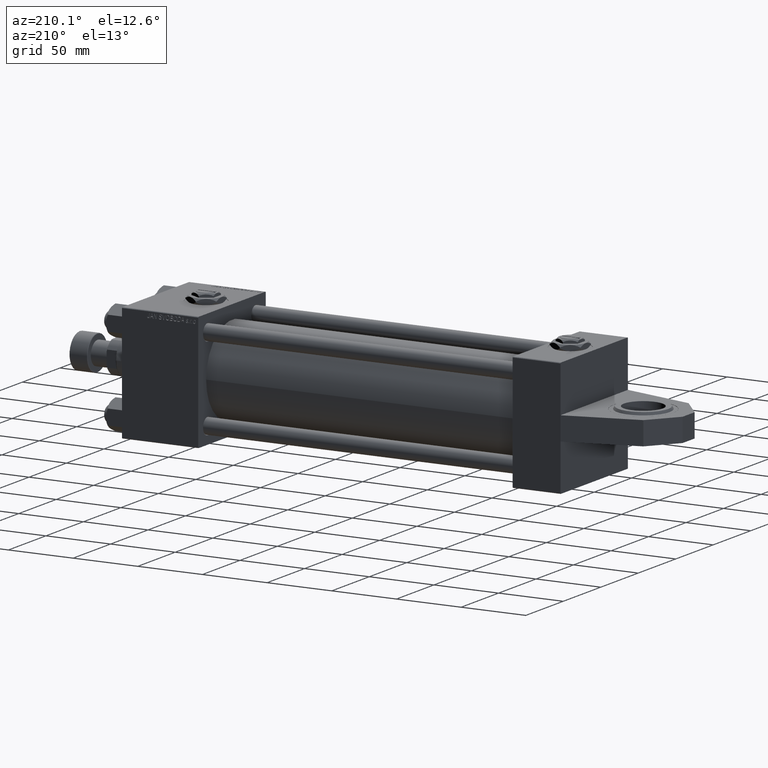
[diagram: clean part render]
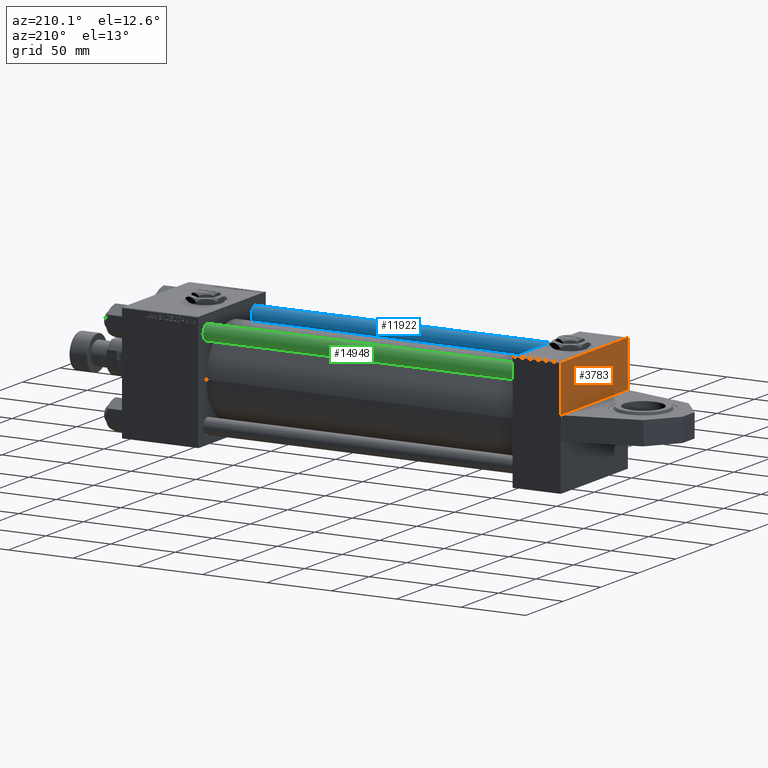
[diagram: same view with three faces highlighted in distinct colors, each labeled with its STEP entity id]
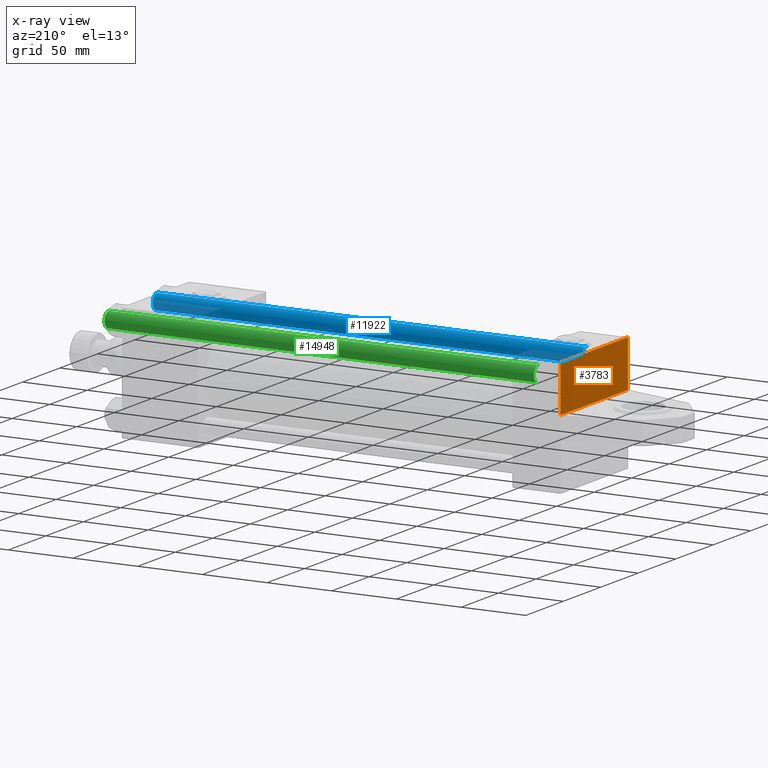
[diagram: x-ray of the same camera — body ghosted, the three highlighted faces saturated]
A machine part, auxiliary view with three faces highlighted in distinct colors.
The next image is the same camera in x-ray (body ghosted, the three faces saturated) — at least one of them is partly hidden behind the body in this view.
Their STEP definitions:

[orange] entity #3783 — the highlighted planar face has unit normal (-1, 0, 0).
#687 = DIRECTION ( 'NONE',  ( 0.000000000000000000, 0.000000000000000000, -1.000000000000000000 ) ) ;
#1086 = ORIENTED_EDGE ( 'NONE', *, *, #11734, .T. ) ;
#1900 = VERTEX_POINT ( 'NONE', #23219 ) ;
#2732 = VERTEX_POINT ( 'NONE', #46293 ) ;
#3783 = ADVANCED_FACE ( 'NONE', ( #19683 ), #7684, .T. ) ;
#4689 = LINE ( 'NONE', #17209, #8142 ) ;
#5716 = LINE ( 'NONE', #21713, #39061 ) ;
#5898 = VERTEX_POINT ( 'NONE', #15032 ) ;
#7684 = PLANE ( 'NONE',  #34745 ) ;
#8142 = VECTOR ( 'NONE', #687, 1000.000000000000000 ) ;
#8159 = EDGE_CURVE ( 'NONE', #1900, #47643, #32149, .T. ) ;
#8643 = EDGE_CURVE ( 'NONE', #2732, #1900, #47011, .T. ) ;
#8708 = EDGE_CURVE ( 'NONE', #47643, #5898, #5716, .T. ) ;
#9776 = ORIENTED_EDGE ( 'NONE', *, *, #28065, .F. ) ;
#10068 = VERTEX_POINT ( 'NONE', #45547 ) ;
#11734 = EDGE_CURVE ( 'NONE', #5898, #26435, #42159, .T. ) ;
#11920 = DIRECTION ( 'NONE',  ( 0.000000000000000000, 0.000000000000000000, -1.000000000000000000 ) ) ;
#12678 = VECTOR ( 'NONE', #22772, 1000.000000000000114 ) ;
#12871 = CARTESIAN_POINT ( 'NONE',  ( 0.000000000000000000, 44.99999999999998579, -44.99999999999998579 ) ) ;
#13905 = EDGE_CURVE ( 'NONE', #2732, #10068, #15505, .T. ) ;
#15032 = CARTESIAN_POINT ( 'NONE',  ( 0.000000000000000000, 44.49999999999998579, -44.99999999999998579 ) ) ;
#15424 = DIRECTION ( 'NONE',  ( -1.000000000000000000, 0.000000000000000000, -0.000000000000000000 ) ) ;
#15505 = LINE ( 'NONE', #44769, #45209 ) ;
#17209 = CARTESIAN_POINT ( 'NONE',  ( 0.000000000000000000, 9.000000000000000000, 45.00000000000000000 ) ) ;
#19683 = FACE_OUTER_BOUND ( 'NONE', #26368, .T. ) ;
#21585 = ORIENTED_EDGE ( 'NONE', *, *, #8643, .T. ) ;
#21713 = CARTESIAN_POINT ( 'NONE',  ( 0.000000000000000000, 44.74999999999998579, -44.74999999999998579 ) ) ;
#22772 = DIRECTION ( 'NONE',  ( 0.000000000000000000, 0.7071067811865474617, -0.7071067811865474617 ) ) ;
#23219 = CARTESIAN_POINT ( 'NONE',  ( 0.000000000000000000, 44.99999999999998579, 44.50000000000001421 ) ) ;
#23401 = CARTESIAN_POINT ( 'NONE',  ( 0.000000000000000000, 44.99999999999998579, -44.49999999999995737 ) ) ;
#26368 = EDGE_LOOP ( 'NONE', ( #9776, #52312, #21585, #45193, #36352, #1086 ) ) ;
#26435 = VERTEX_POINT ( 'NONE', #48899 ) ;
#27507 = DIRECTION ( 'NONE',  ( 0.000000000000000000, -1.000000000000000000, -1.541976423090495387E-16 ) ) ;
#28065 = EDGE_CURVE ( 'NONE', #10068, #26435, #4689, .T. ) ;
#29109 = DIRECTION ( 'NONE',  ( 0.000000000000000000, -1.000000000000000000, -1.541976423090495633E-16 ) ) ;
#31346 = VECTOR ( 'NONE', #11920, 1000.000000000000000 ) ;
#31672 = DIRECTION ( 'NONE',  ( -0.000000000000000000, 0.000000000000000000, 1.000000000000000000 ) ) ;
#32149 = LINE ( 'NONE', #48401, #31346 ) ;
#34745 = AXIS2_PLACEMENT_3D ( 'NONE', #35917, #15424, #31672 ) ;
#35917 = CARTESIAN_POINT ( 'NONE',  ( 0.000000000000000000, 0.000000000000000000, 0.000000000000000000 ) ) ;
#36352 = ORIENTED_EDGE ( 'NONE', *, *, #8708, .T. ) ;
#39061 = VECTOR ( 'NONE', #42476, 1000.000000000000114 ) ;
#42159 = LINE ( 'NONE', #12871, #48477 ) ;
#42211 = CARTESIAN_POINT ( 'NONE',  ( 0.000000000000000000, 44.74999999999999289, 44.74999999999999289 ) ) ;
#42476 = DIRECTION ( 'NONE',  ( -0.000000000000000000, -0.7071067811865474617, -0.7071067811865474617 ) ) ;
#44769 = CARTESIAN_POINT ( 'NONE',  ( 0.000000000000000000, 44.99999999999998579, 45.00000000000001421 ) ) ;
#45193 = ORIENTED_EDGE ( 'NONE', *, *, #8159, .T. ) ;
#45209 = VECTOR ( 'NONE', #27507, 1000.000000000000000 ) ;
#45547 = CARTESIAN_POINT ( 'NONE',  ( 0.000000000000000000, 9.000000000000000000, 45.00000000000000000 ) ) ;
#46293 = CARTESIAN_POINT ( 'NONE',  ( 0.000000000000000000, 44.49999999999998579, 45.00000000000001421 ) ) ;
#47011 = LINE ( 'NONE', #42211, #12678 ) ;
#47643 = VERTEX_POINT ( 'NONE', #23401 ) ;
#48401 = CARTESIAN_POINT ( 'NONE',  ( 0.000000000000000000, 44.99999999999998579, 45.00000000000001421 ) ) ;
#48477 = VECTOR ( 'NONE', #29109, 1000.000000000000000 ) ;
#48899 = CARTESIAN_POINT ( 'NONE',  ( 0.000000000000000000, 9.000000000000000000, -45.00000000000000000 ) ) ;
#52312 = ORIENTED_EDGE ( 'NONE', *, *, #13905, .F. ) ;

[blue] entity #11922 — the highlighted cylindrical surface (edge-blend (fillet) strip) has radius 6 mm, axis along (-1, 0, -0).
#1735 = CIRCLE ( 'NONE', #31493, 6.000000000000000888 ) ;
#2196 = CARTESIAN_POINT ( 'NONE',  ( 6.000000000000000888, 7.347880794884120722E-16, 0.5000000000000004441 ) ) ;
#2479 = VERTEX_POINT ( 'NONE', #2196 ) ;
#7102 = EDGE_LOOP ( 'NONE', ( #48177, #34430, #51551, #50310 ) ) ;
#9551 = CARTESIAN_POINT ( 'NONE',  ( -6.000000000000000888, 0.000000000000000000, 332.5000000000001137 ) ) ;
#11797 = EDGE_CURVE ( 'NONE', #36660, #2479, #1735, .T. ) ;
#11922 = ADVANCED_FACE ( 'NONE', ( #51731 ), #26190, .T. ) ;
#17466 = LINE ( 'NONE', #37696, #31351 ) ;
#18195 = VERTEX_POINT ( 'NONE', #34607 ) ;
#19560 = CIRCLE ( 'NONE', #43366, 6.000000000000000888 ) ;
#22198 = CARTESIAN_POINT ( 'NONE',  ( 0.000000000000000000, 0.000000000000000000, 0.5000000000000004441 ) ) ;
#25026 = DIRECTION ( 'NONE',  ( 1.000000000000000000, 0.000000000000000000, 0.000000000000000000 ) ) ;
#26190 = CYLINDRICAL_SURFACE ( 'NONE', #27291, 6.000000000000000888 ) ;
#27291 = AXIS2_PLACEMENT_3D ( 'NONE', #28247, #31734, #47982 ) ;
#27781 = VERTEX_POINT ( 'NONE', #9551 ) ;
#28247 = CARTESIAN_POINT ( 'NONE',  ( 0.000000000000000000, 0.000000000000000000, 333.0000000000000000 ) ) ;
#30084 = CARTESIAN_POINT ( 'NONE',  ( 0.000000000000000000, 0.000000000000000000, 332.5000000000001137 ) ) ;
#31351 = VECTOR ( 'NONE', #42235, 1000.000000000000000 ) ;
#31493 = AXIS2_PLACEMENT_3D ( 'NONE', #22198, #43202, #46691 ) ;
#31734 = DIRECTION ( 'NONE',  ( -0.000000000000000000, -0.000000000000000000, -1.000000000000000000 ) ) ;
#34060 = DIRECTION ( 'NONE',  ( 0.000000000000000000, 0.000000000000000000, -1.000000000000000000 ) ) ;
#34430 = ORIENTED_EDGE ( 'NONE', *, *, #37024, .T. ) ;
#34520 = EDGE_CURVE ( 'NONE', #27781, #36660, #17466, .T. ) ;
#34607 = CARTESIAN_POINT ( 'NONE',  ( 6.000000000000000888, 7.347880794884120722E-16, 332.5000000000001137 ) ) ;
#36660 = VERTEX_POINT ( 'NONE', #39988 ) ;
#37024 = EDGE_CURVE ( 'NONE', #18195, #27781, #19560, .T. ) ;
#37696 = CARTESIAN_POINT ( 'NONE',  ( -6.000000000000000888, 0.000000000000000000, 333.0000000000000000 ) ) ;
#38415 = VECTOR ( 'NONE', #46810, 1000.000000000000000 ) ;
#39988 = CARTESIAN_POINT ( 'NONE',  ( -6.000000000000000888, 0.000000000000000000, 0.5000000000000004441 ) ) ;
#42235 = DIRECTION ( 'NONE',  ( -0.000000000000000000, -0.000000000000000000, -1.000000000000000000 ) ) ;
#43202 = DIRECTION ( 'NONE',  ( -0.000000000000000000, -0.000000000000000000, 1.000000000000000000 ) ) ;
#43366 = AXIS2_PLACEMENT_3D ( 'NONE', #30084, #34060, #25026 ) ;
#44677 = EDGE_CURVE ( 'NONE', #18195, #2479, #50810, .T. ) ;
#46691 = DIRECTION ( 'NONE',  ( 1.000000000000000000, 0.000000000000000000, 0.000000000000000000 ) ) ;
#46810 = DIRECTION ( 'NONE',  ( -0.000000000000000000, -0.000000000000000000, -1.000000000000000000 ) ) ;
#47982 = DIRECTION ( 'NONE',  ( -1.000000000000000000, 0.000000000000000000, 0.000000000000000000 ) ) ;
#48177 = ORIENTED_EDGE ( 'NONE', *, *, #44677, .F. ) ;
#49738 = CARTESIAN_POINT ( 'NONE',  ( 6.000000000000000888, 7.347880794884120722E-16, 333.0000000000000000 ) ) ;
#50310 = ORIENTED_EDGE ( 'NONE', *, *, #11797, .T. ) ;
#50810 = LINE ( 'NONE', #49738, #38415 ) ;
#51551 = ORIENTED_EDGE ( 'NONE', *, *, #34520, .T. ) ;
#51731 = FACE_OUTER_BOUND ( 'NONE', #7102, .T. ) ;

[green] entity #14948 — the highlighted cylindrical surface (edge-blend (fillet) strip) has radius 6 mm, axis along (1, 0, 0).
#694 = AXIS2_PLACEMENT_3D ( 'NONE', #14585, #34812, #26838 ) ;
#2196 = CARTESIAN_POINT ( 'NONE',  ( 6.000000000000000888, 7.347880794884120722E-16, 0.5000000000000004441 ) ) ;
#2479 = VERTEX_POINT ( 'NONE', #2196 ) ;
#4054 = CARTESIAN_POINT ( 'NONE',  ( 0.000000000000000000, 0.000000000000000000, 332.5000000000001137 ) ) ;
#4076 = CIRCLE ( 'NONE', #694, 6.000000000000000888 ) ;
#6166 = ORIENTED_EDGE ( 'NONE', *, *, #44677, .T. ) ;
#9095 = DIRECTION ( 'NONE',  ( -0.000000000000000000, -0.000000000000000000, -1.000000000000000000 ) ) ;
#9551 = CARTESIAN_POINT ( 'NONE',  ( -6.000000000000000888, 0.000000000000000000, 332.5000000000001137 ) ) ;
#11092 = AXIS2_PLACEMENT_3D ( 'NONE', #4054, #52287, #19792 ) ;
#14585 = CARTESIAN_POINT ( 'NONE',  ( 0.000000000000000000, 0.000000000000000000, 0.5000000000000004441 ) ) ;
#14948 = ADVANCED_FACE ( 'NONE', ( #21358 ), #45848, .T. ) ;
#17466 = LINE ( 'NONE', #37696, #31351 ) ;
#18195 = VERTEX_POINT ( 'NONE', #34607 ) ;
#19235 = ORIENTED_EDGE ( 'NONE', *, *, #34520, .F. ) ;
#19792 = DIRECTION ( 'NONE',  ( 1.000000000000000000, 0.000000000000000000, 0.000000000000000000 ) ) ;
#21247 = EDGE_LOOP ( 'NONE', ( #33682, #6166, #44220, #19235 ) ) ;
#21358 = FACE_OUTER_BOUND ( 'NONE', #21247, .T. ) ;
#23152 = AXIS2_PLACEMENT_3D ( 'NONE', #45581, #9095, #33588 ) ;
#26838 = DIRECTION ( 'NONE',  ( 1.000000000000000000, 0.000000000000000000, 0.000000000000000000 ) ) ;
#27781 = VERTEX_POINT ( 'NONE', #9551 ) ;
#31351 = VECTOR ( 'NONE', #42235, 1000.000000000000000 ) ;
#33193 = CIRCLE ( 'NONE', #11092, 6.000000000000000888 ) ;
#33394 = EDGE_CURVE ( 'NONE', #2479, #36660, #4076, .T. ) ;
#33588 = DIRECTION ( 'NONE',  ( -1.000000000000000000, 0.000000000000000000, 0.000000000000000000 ) ) ;
#33682 = ORIENTED_EDGE ( 'NONE', *, *, #41952, .T. ) ;
#34520 = EDGE_CURVE ( 'NONE', #27781, #36660, #17466, .T. ) ;
#34607 = CARTESIAN_POINT ( 'NONE',  ( 6.000000000000000888, 7.347880794884120722E-16, 332.5000000000001137 ) ) ;
#34812 = DIRECTION ( 'NONE',  ( -0.000000000000000000, -0.000000000000000000, 1.000000000000000000 ) ) ;
#36660 = VERTEX_POINT ( 'NONE', #39988 ) ;
#37696 = CARTESIAN_POINT ( 'NONE',  ( -6.000000000000000888, 0.000000000000000000, 333.0000000000000000 ) ) ;
#38415 = VECTOR ( 'NONE', #46810, 1000.000000000000000 ) ;
#39988 = CARTESIAN_POINT ( 'NONE',  ( -6.000000000000000888, 0.000000000000000000, 0.5000000000000004441 ) ) ;
#41952 = EDGE_CURVE ( 'NONE', #27781, #18195, #33193, .T. ) ;
#42235 = DIRECTION ( 'NONE',  ( -0.000000000000000000, -0.000000000000000000, -1.000000000000000000 ) ) ;
#44220 = ORIENTED_EDGE ( 'NONE', *, *, #33394, .T. ) ;
#44677 = EDGE_CURVE ( 'NONE', #18195, #2479, #50810, .T. ) ;
#45581 = CARTESIAN_POINT ( 'NONE',  ( 0.000000000000000000, 0.000000000000000000, 333.0000000000000000 ) ) ;
#45848 = CYLINDRICAL_SURFACE ( 'NONE', #23152, 6.000000000000000888 ) ;
#46810 = DIRECTION ( 'NONE',  ( -0.000000000000000000, -0.000000000000000000, -1.000000000000000000 ) ) ;
#49738 = CARTESIAN_POINT ( 'NONE',  ( 6.000000000000000888, 7.347880794884120722E-16, 333.0000000000000000 ) ) ;
#50810 = LINE ( 'NONE', #49738, #38415 ) ;
#52287 = DIRECTION ( 'NONE',  ( 0.000000000000000000, 0.000000000000000000, -1.000000000000000000 ) ) ;